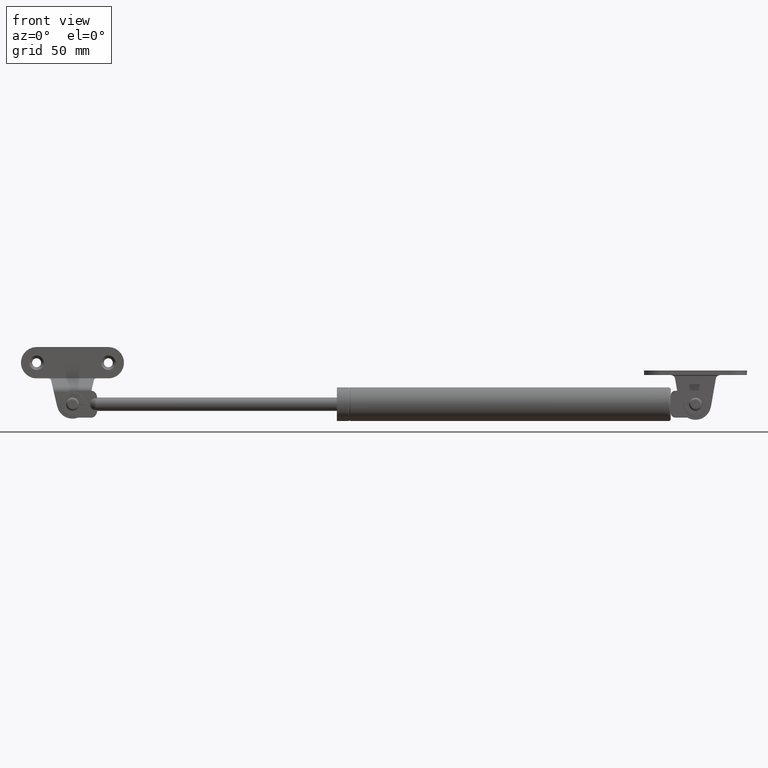
[diagram: clean part render]
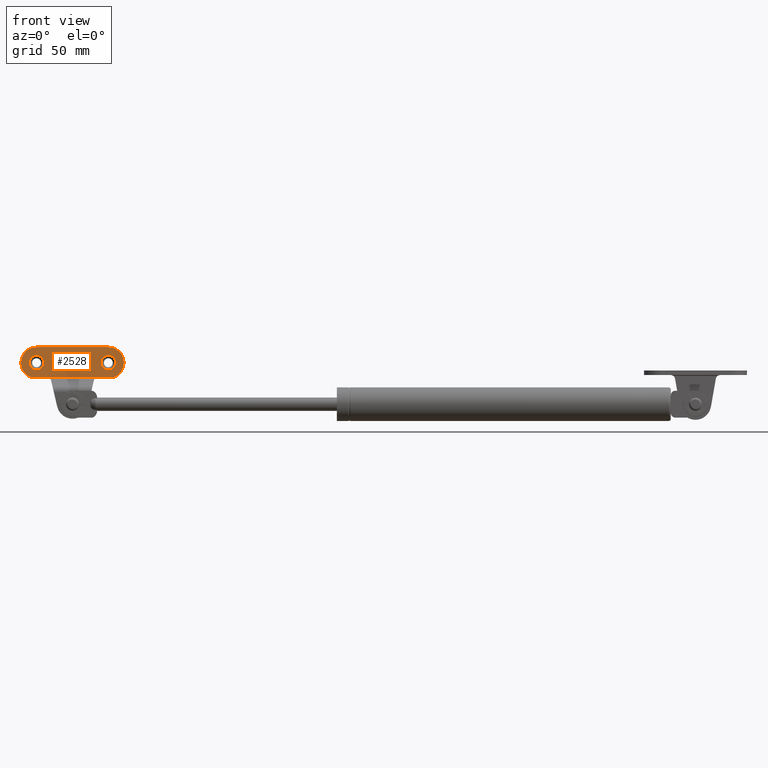
[diagram: same view with one face highlighted and labeled with its STEP entity id]
A machine part, front view. The second image highlights one B-rep face of the part: STEP entity #2528.
In plain terms, the highlighted planar face has unit normal (-0, -1, -0).
Its self-contained STEP definition (entity closure, byte-faithful):
#188=LINE('',#4548,#330);
#199=LINE('',#4616,#341);
#330=VECTOR('',#3405,35.7080992435478);
#341=VECTOR('',#3464,32.);
#433=PLANE('',#2799);
#572=FACE_BOUND('',#903,.T.);
#573=FACE_BOUND('',#904,.T.);
#686=FACE_OUTER_BOUND('',#902,.T.);
#902=EDGE_LOOP('',(#2144,#2145,#2146,#2147));
#903=EDGE_LOOP('',(#2148));
#904=EDGE_LOOP('',(#2149));
#1038=CIRCLE('',#2783,3.25);
#1041=CIRCLE('',#2788,3.25);
#1045=CIRCLE('',#2794,7.);
#1046=CIRCLE('',#2796,7.);
#1275=VERTEX_POINT('',#4540);
#1276=VERTEX_POINT('',#4547);
#1282=VERTEX_POINT('',#4587);
#1285=VERTEX_POINT('',#4595);
#1289=VERTEX_POINT('',#4605);
#1290=VERTEX_POINT('',#4609);
#1562=EDGE_CURVE('',#1275,#1276,#188,.T.);
#1574=EDGE_CURVE('',#1282,#1282,#1038,.T.);
#1577=EDGE_CURVE('',#1285,#1285,#1041,.T.);
#1582=EDGE_CURVE('',#1275,#1289,#1045,.T.);
#1583=EDGE_CURVE('',#1290,#1276,#1046,.T.);
#1587=EDGE_CURVE('',#1289,#1290,#199,.T.);
#2144=ORIENTED_EDGE('',*,*,#1562,.F.);
#2145=ORIENTED_EDGE('',*,*,#1582,.T.);
#2146=ORIENTED_EDGE('',*,*,#1587,.T.);
#2147=ORIENTED_EDGE('',*,*,#1583,.T.);
#2148=ORIENTED_EDGE('',*,*,#1574,.T.);
#2149=ORIENTED_EDGE('',*,*,#1577,.T.);
#2528=ADVANCED_FACE('',(#686,#572,#573),#433,.T.);
#2783=AXIS2_PLACEMENT_3D('',#4588,#3429,#3430);
#2788=AXIS2_PLACEMENT_3D('',#4596,#3439,#3440);
#2794=AXIS2_PLACEMENT_3D('',#4607,#3452,#3453);
#2796=AXIS2_PLACEMENT_3D('',#4610,#3456,#3457);
#2799=AXIS2_PLACEMENT_3D('',#4617,#3465,#3466);
#3405=DIRECTION('',(1.,0.,0.));
#3429=DIRECTION('center_axis',(0.,0.,-1.));
#3430=DIRECTION('ref_axis',(1.,0.,0.));
#3439=DIRECTION('center_axis',(0.,0.,-1.));
#3440=DIRECTION('ref_axis',(1.,0.,0.));
#3452=DIRECTION('center_axis',(0.,0.,1.));
#3453=DIRECTION('ref_axis',(0.,1.,0.));
#3456=DIRECTION('center_axis',(0.,0.,1.));
#3457=DIRECTION('ref_axis',(0.,-1.,0.));
#3464=DIRECTION('',(1.,-3.46944695195361E-17,0.));
#3465=DIRECTION('center_axis',(0.,0.,1.));
#3466=DIRECTION('ref_axis',(1.,0.,0.));
#4540=CARTESIAN_POINT('',(-17.8540496217739,6.75,2.));
#4547=CARTESIAN_POINT('',(17.8540496217739,6.75,2.));
#4548=CARTESIAN_POINT('',(0.,6.75,2.));
#4587=CARTESIAN_POINT('',(-12.75,0.,2.));
#4588=CARTESIAN_POINT('Origin',(-16.,0.,2.));
#4595=CARTESIAN_POINT('',(19.25,5.8783046359073E-15,2.));
#4596=CARTESIAN_POINT('Origin',(16.,5.8783046359073E-15,2.));
#4605=CARTESIAN_POINT('',(-16.,-7.,2.));
#4607=CARTESIAN_POINT('Origin',(-16.,0.,2.));
#4609=CARTESIAN_POINT('',(16.,-7.,2.));
#4610=CARTESIAN_POINT('Origin',(16.,0.,2.));
#4616=CARTESIAN_POINT('',(-16.,-7.,2.));
#4617=CARTESIAN_POINT('Origin',(0.,1.11756870305741E-15,2.));